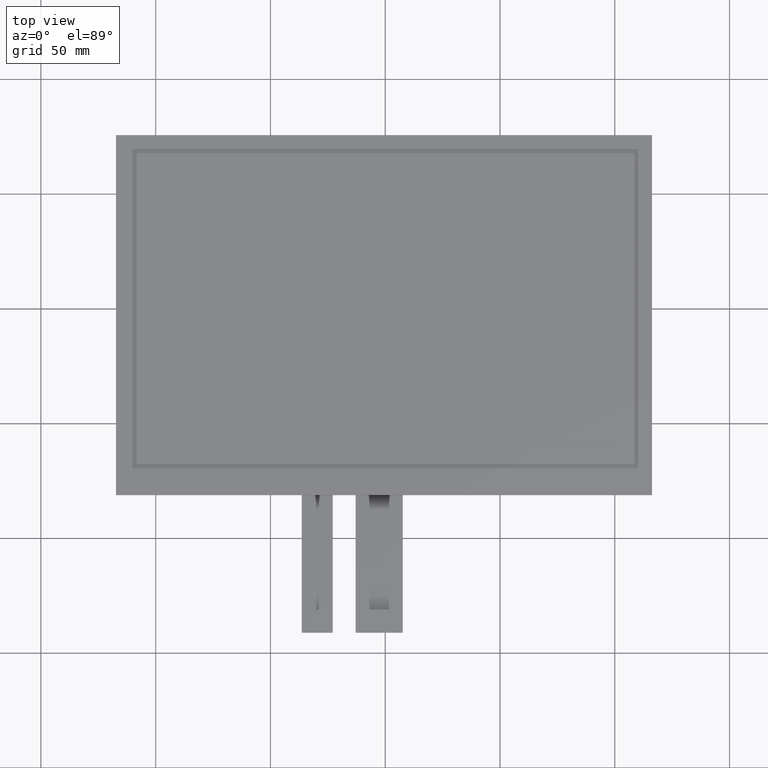
[diagram: clean part render]
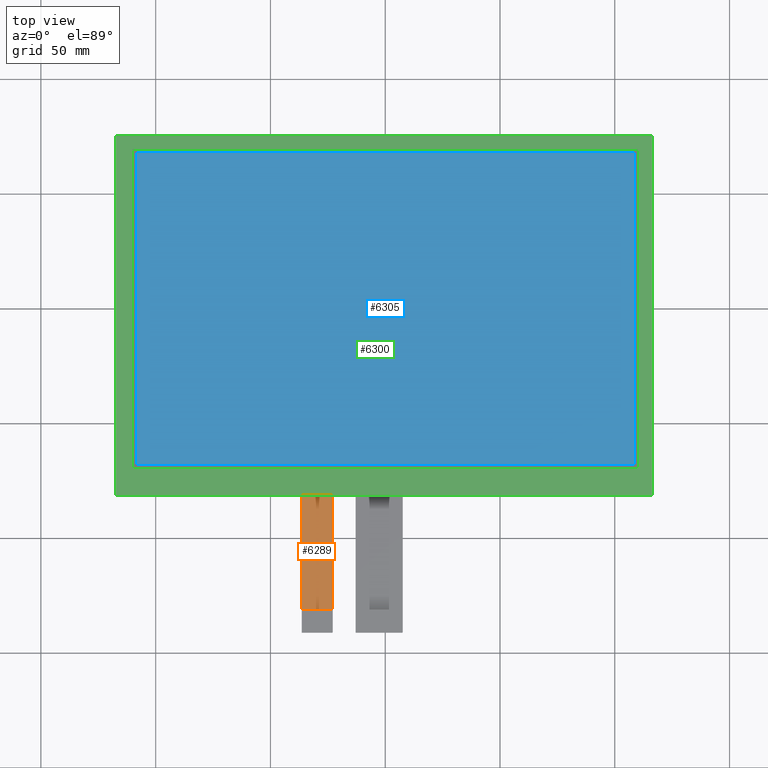
[diagram: same view with three faces highlighted in distinct colors, each labeled with its STEP entity id]
A machine part, top view with three faces highlighted in distinct colors.
Their STEP definitions:

[orange] entity #6289 — the highlighted planar face has unit normal (0, 0, 1).
#351=PLANE('',#6619);
#653=FACE_OUTER_BOUND('',#955,.T.);
#955=EDGE_LOOP('',(#5913,#5914,#5915,#5916));
#1094=LINE('',#8385,#1974);
#1803=LINE('',#9812,#2683);
#1815=LINE('',#9835,#2695);
#1819=LINE('',#9843,#2699);
#1974=VECTOR('',#6774,10.);
#2683=VECTOR('',#8033,10.);
#2695=VECTOR('',#8055,10.);
#2699=VECTOR('',#8067,10.);
#2862=VERTEX_POINT('',#8382);
#2863=VERTEX_POINT('',#8384);
#3305=VERTEX_POINT('',#9809);
#3306=VERTEX_POINT('',#9811);
#3458=EDGE_CURVE('',#2863,#2862,#1094,.T.);
#4171=EDGE_CURVE('',#3306,#3305,#1803,.T.);
#4183=EDGE_CURVE('',#3305,#2863,#1815,.T.);
#4187=EDGE_CURVE('',#3306,#2862,#1819,.T.);
#5913=ORIENTED_EDGE('',*,*,#4183,.T.);
#5914=ORIENTED_EDGE('',*,*,#3458,.T.);
#5915=ORIENTED_EDGE('',*,*,#4187,.F.);
#5916=ORIENTED_EDGE('',*,*,#4171,.T.);
#6289=ADVANCED_FACE('',(#653),#351,.T.);
#6619=AXIS2_PLACEMENT_3D('',#9842,#8065,#8066);
#6774=DIRECTION('',(0.,1.,0.));
#8033=DIRECTION('',(3.70074341541719E-16,-1.,0.));
#8055=DIRECTION('',(1.,0.,0.));
#8065=DIRECTION('center_axis',(0.,0.,1.));
#8066=DIRECTION('ref_axis',(1.,0.,0.));
#8067=DIRECTION('',(1.,1.52150478749486E-16,0.));
#8382=CARTESIAN_POINT('',(-22.8799999999999,-81.2,-1.1));
#8384=CARTESIAN_POINT('',(-22.8799999999999,-131.2,-1.1));
#8385=CARTESIAN_POINT('',(-22.8799999999999,-141.2,-1.1));
#9809=CARTESIAN_POINT('',(-36.3799999999999,-131.2,-1.1));
#9811=CARTESIAN_POINT('',(-36.3799999999999,-81.2,-1.1));
#9812=CARTESIAN_POINT('',(-36.3799999999999,-81.2,-1.1));
#9835=CARTESIAN_POINT('',(-26.2549999999999,-131.2,-1.1));
#9842=CARTESIAN_POINT('Origin',(-29.6299999999999,-111.2,-1.1));
#9843=CARTESIAN_POINT('',(43.2950000000001,-81.2,-1.1));

[blue] entity #6305 — the highlighted planar face has unit normal (0, 0, 1).
#367=PLANE('',#6635);
#669=FACE_OUTER_BOUND('',#975,.T.);
#975=EDGE_LOOP('',(#5993,#5994,#5995,#5996));
#1821=LINE('',#9849,#2701);
#1825=LINE('',#9857,#2705);
#1828=LINE('',#9863,#2708);
#1831=LINE('',#9868,#2711);
#2701=VECTOR('',#8073,10.);
#2705=VECTOR('',#8079,10.);
#2708=VECTOR('',#8084,10.);
#2711=VECTOR('',#8089,10.);
#3313=VERTEX_POINT('',#9847);
#3314=VERTEX_POINT('',#9848);
#3317=VERTEX_POINT('',#9856);
#3319=VERTEX_POINT('',#9862);
#4189=EDGE_CURVE('',#3313,#3314,#1821,.T.);
#4193=EDGE_CURVE('',#3317,#3313,#1825,.T.);
#4196=EDGE_CURVE('',#3319,#3317,#1828,.T.);
#4199=EDGE_CURVE('',#3314,#3319,#1831,.T.);
#5993=ORIENTED_EDGE('',*,*,#4189,.T.);
#5994=ORIENTED_EDGE('',*,*,#4199,.T.);
#5995=ORIENTED_EDGE('',*,*,#4196,.T.);
#5996=ORIENTED_EDGE('',*,*,#4193,.T.);
#6305=ADVANCED_FACE('',(#669),#367,.T.);
#6635=AXIS2_PLACEMENT_3D('',#9920,#8135,#8136);
#8073=DIRECTION('',(1.,0.,0.));
#8079=DIRECTION('',(0.,-1.,0.));
#8084=DIRECTION('',(-1.,0.,0.));
#8089=DIRECTION('',(0.,1.,0.));
#8135=DIRECTION('center_axis',(0.,0.,1.));
#8136=DIRECTION('ref_axis',(1.,0.,0.));
#9847=CARTESIAN_POINT('',(-108.48,-67.8,0.));
#9848=CARTESIAN_POINT('',(108.48,-67.8,0.));
#9849=CARTESIAN_POINT('',(-54.505,-67.8,0.));
#9856=CARTESIAN_POINT('',(-108.48,67.8,0.));
#9857=CARTESIAN_POINT('',(-108.48,32.5,0.));
#9862=CARTESIAN_POINT('',(108.48,67.8,0.));
#9863=CARTESIAN_POINT('',(53.975,67.8,0.));
#9868=CARTESIAN_POINT('',(108.48,-35.3,0.));
#9920=CARTESIAN_POINT('Origin',(-0.529999999999999,-2.79999999999998,0.));

[green] entity #6300 — the highlighted planar face has unit normal (0, 0, 1).
#68=FACE_BOUND('',#968,.T.);
#362=PLANE('',#6630);
#664=FACE_OUTER_BOUND('',#967,.T.);
#967=EDGE_LOOP('',(#5961,#5962,#5963,#5964));
#968=EDGE_LOOP('',(#5965,#5966,#5967,#5968));
#1833=LINE('',#9873,#2713);
#1837=LINE('',#9881,#2717);
#1840=LINE('',#9887,#2720);
#1843=LINE('',#9892,#2723);
#1845=LINE('',#9898,#2725);
#1846=LINE('',#9900,#2726);
#1847=LINE('',#9902,#2727);
#1848=LINE('',#9903,#2728);
#2713=VECTOR('',#8093,10.);
#2717=VECTOR('',#8099,10.);
#2720=VECTOR('',#8104,10.);
#2723=VECTOR('',#8109,10.);
#2725=VECTOR('',#8115,10.);
#2726=VECTOR('',#8116,10.);
#2727=VECTOR('',#8117,10.);
#2728=VECTOR('',#8118,10.);
#3321=VERTEX_POINT('',#9871);
#3322=VERTEX_POINT('',#9872);
#3325=VERTEX_POINT('',#9880);
#3327=VERTEX_POINT('',#9886);
#3329=VERTEX_POINT('',#9896);
#3330=VERTEX_POINT('',#9897);
#3331=VERTEX_POINT('',#9899);
#3332=VERTEX_POINT('',#9901);
#4201=EDGE_CURVE('',#3321,#3322,#1833,.T.);
#4205=EDGE_CURVE('',#3325,#3321,#1837,.T.);
#4208=EDGE_CURVE('',#3327,#3325,#1840,.T.);
#4211=EDGE_CURVE('',#3322,#3327,#1843,.T.);
#4213=EDGE_CURVE('',#3329,#3330,#1845,.T.);
#4214=EDGE_CURVE('',#3330,#3331,#1846,.T.);
#4215=EDGE_CURVE('',#3331,#3332,#1847,.T.);
#4216=EDGE_CURVE('',#3332,#3329,#1848,.T.);
#5961=ORIENTED_EDGE('',*,*,#4213,.T.);
#5962=ORIENTED_EDGE('',*,*,#4214,.T.);
#5963=ORIENTED_EDGE('',*,*,#4215,.T.);
#5964=ORIENTED_EDGE('',*,*,#4216,.T.);
#5965=ORIENTED_EDGE('',*,*,#4201,.T.);
#5966=ORIENTED_EDGE('',*,*,#4211,.T.);
#5967=ORIENTED_EDGE('',*,*,#4208,.T.);
#5968=ORIENTED_EDGE('',*,*,#4205,.T.);
#6300=ADVANCED_FACE('',(#664,#68),#362,.T.);
#6630=AXIS2_PLACEMENT_3D('',#9895,#8113,#8114);
#8093=DIRECTION('',(-1.27703582990672E-16,1.,0.));
#8099=DIRECTION('',(-1.,-1.2091737425578E-16,0.));
#8104=DIRECTION('',(1.27703582990672E-16,-1.,0.));
#8109=DIRECTION('',(1.,4.03057914185934E-17,0.));
#8113=DIRECTION('center_axis',(0.,0.,1.));
#8114=DIRECTION('ref_axis',(1.,0.,0.));
#8115=DIRECTION('',(-1.,0.,0.));
#8116=DIRECTION('',(1.13288063737261E-16,-1.,0.));
#8117=DIRECTION('',(1.,1.52150478749486E-16,0.));
#8118=DIRECTION('',(-1.13288063737261E-16,1.,0.));
#9871=CARTESIAN_POINT('',(-110.18,-69.5,0.));
#9872=CARTESIAN_POINT('',(-110.18,69.6,0.));
#9873=CARTESIAN_POINT('',(-110.18,-36.15,0.));
#9880=CARTESIAN_POINT('',(110.18,-69.5,0.));
#9881=CARTESIAN_POINT('',(54.825,-69.5,0.));
#9886=CARTESIAN_POINT('',(110.18,69.6,0.));
#9887=CARTESIAN_POINT('',(110.18,33.4,0.));
#9892=CARTESIAN_POINT('',(-55.355,69.6,0.));
#9895=CARTESIAN_POINT('Origin',(-0.529999999999999,-2.79999999999998,0.));
#9896=CARTESIAN_POINT('',(116.22,75.6,0.));
#9897=CARTESIAN_POINT('',(-117.28,75.6,0.));
#9898=CARTESIAN_POINT('',(116.22,75.6,0.));
#9899=CARTESIAN_POINT('',(-117.28,-81.2,0.));
#9900=CARTESIAN_POINT('',(-117.28,75.6,0.));
#9901=CARTESIAN_POINT('',(116.22,-81.2,0.));
#9902=CARTESIAN_POINT('',(-117.28,-81.2,0.));
#9903=CARTESIAN_POINT('',(116.22,-81.2,0.));